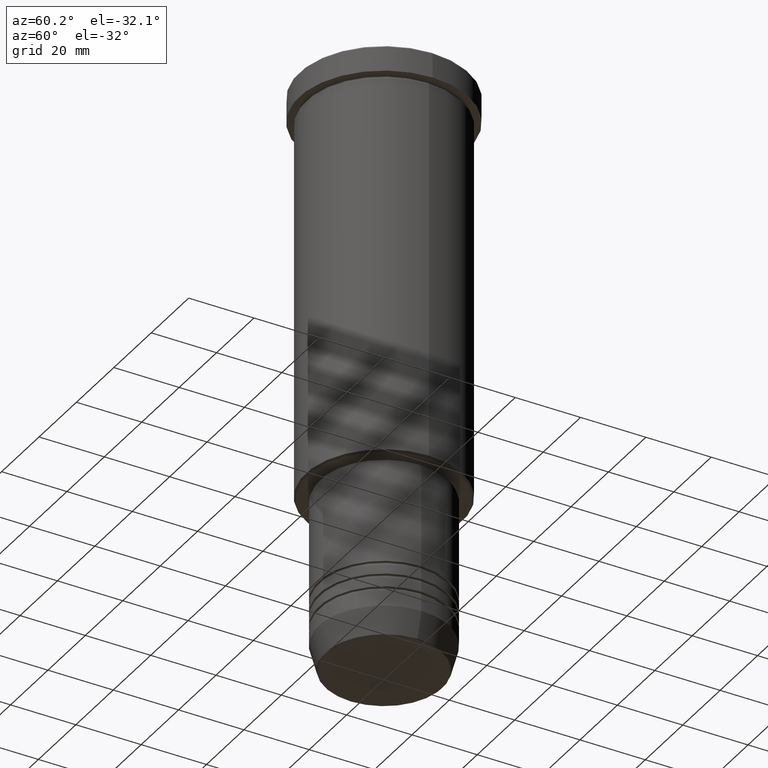
[diagram: clean part render]
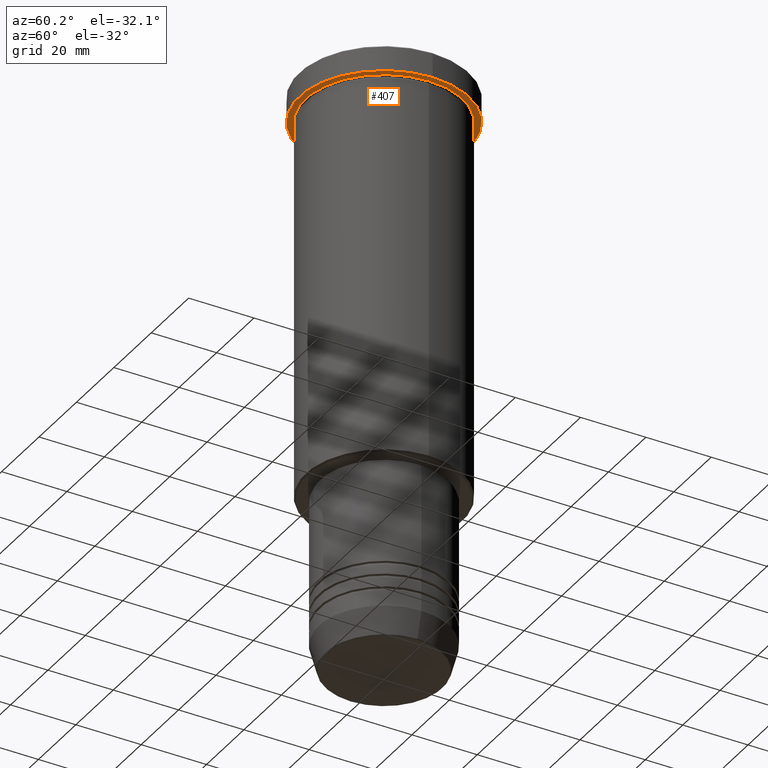
[diagram: same view with one face highlighted and labeled with its STEP entity id]
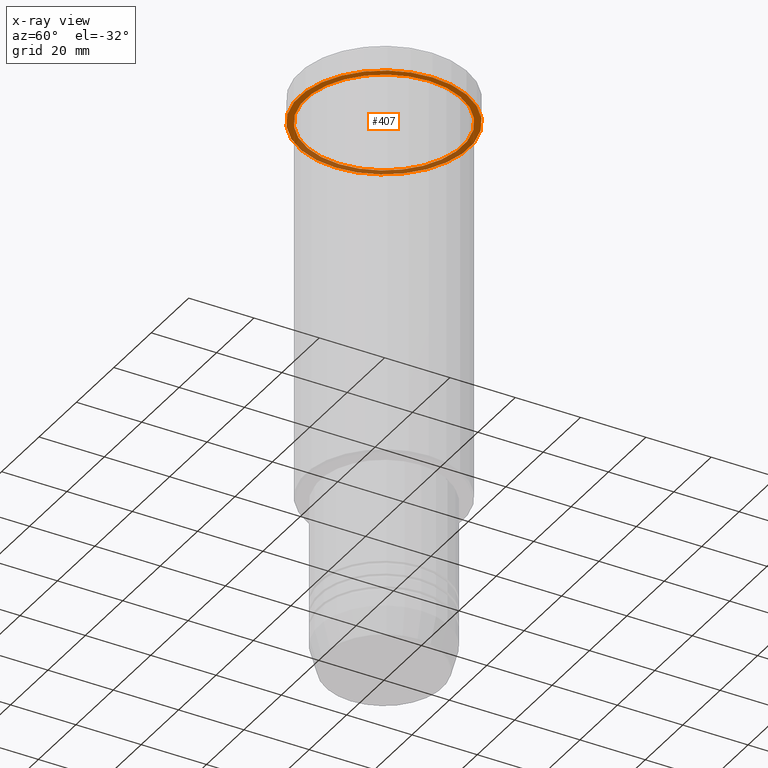
[diagram: x-ray of the same camera — body ghosted, the highlighted face saturated]
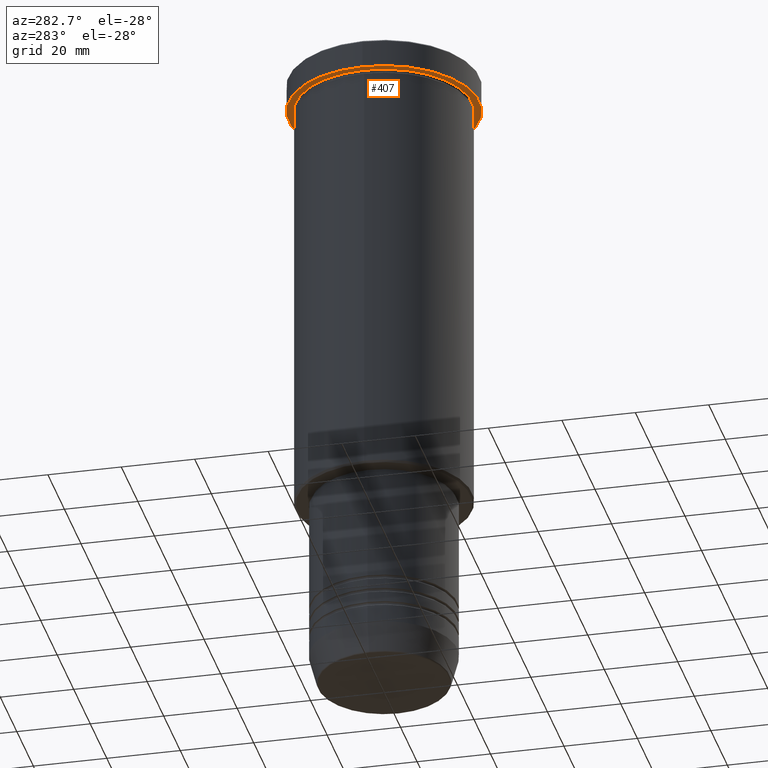
[diagram: same view with one face highlighted and labeled with its STEP entity id]
A machine part, auxiliary view. The second image highlights one B-rep face of the part: STEP entity #407.
The next image is the same camera in x-ray: the body ghosted, the highlighted face saturated — about 38% of this face is hidden behind the body in this view.
A second angle (auxiliary view) of the same face is appended — the face is thin or edge-on in the first view.
In plain terms, the highlighted planar face has unit normal (0, 0, -1).
Its self-contained STEP definition (entity closure, byte-faithful):
#40 = AXIS2_PLACEMENT_3D ( 'NONE', #394, #756, #119 ) ;
#53 = DIRECTION ( 'NONE',  ( -0.000000000000000000, -0.000000000000000000, 1.000000000000000000 ) ) ;
#62 = EDGE_CURVE ( 'NONE', #563, #750, #396, .T. ) ;
#70 = AXIS2_PLACEMENT_3D ( 'NONE', #349, #631, #720 ) ;
#78 = VERTEX_POINT ( 'NONE', #247 ) ;
#119 = DIRECTION ( 'NONE',  ( -1.000000000000000000, 0.000000000000000000, 0.000000000000000000 ) ) ;
#150 = CARTESIAN_POINT ( 'NONE',  ( 0.000000000000000000, 0.000000000000000000, -7.999999999999992895 ) ) ;
#201 = EDGE_CURVE ( 'NONE', #461, #78, #892, .T. ) ;
#208 = DIRECTION ( 'NONE',  ( -1.000000000000000000, 0.000000000000000000, -0.000000000000000000 ) ) ;
#217 = FACE_BOUND ( 'NONE', #1010, .T. ) ;
#247 = CARTESIAN_POINT ( 'NONE',  ( 26.00000000000000000, 0.000000000000000000, -7.999999999999992895 ) ) ;
#248 = DIRECTION ( 'NONE',  ( -0.000000000000000000, -0.000000000000000000, 1.000000000000000000 ) ) ;
#294 = FACE_OUTER_BOUND ( 'NONE', #437, .T. ) ;
#328 = CARTESIAN_POINT ( 'NONE',  ( -24.00000000000000000, 0.000000000000000000, -7.999999999999992895 ) ) ;
#349 = CARTESIAN_POINT ( 'NONE',  ( 0.000000000000000000, 0.000000000000000000, -7.999999999999992895 ) ) ;
#363 = CARTESIAN_POINT ( 'NONE',  ( 24.00000000000000000, 2.939152317953647894E-15, -7.999999999999992895 ) ) ;
#368 = ORIENTED_EDGE ( 'NONE', *, *, #1136, .F. ) ;
#394 = CARTESIAN_POINT ( 'NONE',  ( 0.000000000000000000, 0.000000000000000000, -7.999999999999992895 ) ) ;
#396 = CIRCLE ( 'NONE', #912, 24.00000000000000000 ) ;
#407 = ADVANCED_FACE ( 'NONE', ( #217, #294 ), #580, .T. ) ;
#437 = EDGE_LOOP ( 'NONE', ( #368, #953 ) ) ;
#461 = VERTEX_POINT ( 'NONE', #499 ) ;
#499 = CARTESIAN_POINT ( 'NONE',  ( -26.00000000000000000, 3.184081677783118191E-15, -7.999999999999992895 ) ) ;
#563 = VERTEX_POINT ( 'NONE', #328 ) ;
#580 = PLANE ( 'NONE',  #1165 ) ;
#602 = DIRECTION ( 'NONE',  ( -1.000000000000000000, 0.000000000000000000, 0.000000000000000000 ) ) ;
#608 = CIRCLE ( 'NONE', #990, 26.00000000000000000 ) ;
#613 = DIRECTION ( 'NONE',  ( 1.000000000000000000, 0.000000000000000000, 0.000000000000000000 ) ) ;
#626 = CARTESIAN_POINT ( 'NONE',  ( 0.000000000000000000, 0.000000000000000000, -7.999999999999992895 ) ) ;
#631 = DIRECTION ( 'NONE',  ( -0.000000000000000000, -0.000000000000000000, 1.000000000000000000 ) ) ;
#666 = CARTESIAN_POINT ( 'NONE',  ( 0.000000000000000000, 26.00000000000000000, -7.999999999999992895 ) ) ;
#720 = DIRECTION ( 'NONE',  ( 1.000000000000000000, 0.000000000000000000, 0.000000000000000000 ) ) ;
#722 = CIRCLE ( 'NONE', #40, 24.00000000000000000 ) ;
#750 = VERTEX_POINT ( 'NONE', #363 ) ;
#754 = EDGE_CURVE ( 'NONE', #750, #563, #722, .T. ) ;
#756 = DIRECTION ( 'NONE',  ( -0.000000000000000000, -0.000000000000000000, 1.000000000000000000 ) ) ;
#781 = ORIENTED_EDGE ( 'NONE', *, *, #754, .T. ) ;
#892 = CIRCLE ( 'NONE', #70, 26.00000000000000000 ) ;
#908 = ORIENTED_EDGE ( 'NONE', *, *, #62, .T. ) ;
#912 = AXIS2_PLACEMENT_3D ( 'NONE', #150, #53, #602 ) ;
#953 = ORIENTED_EDGE ( 'NONE', *, *, #201, .F. ) ;
#990 = AXIS2_PLACEMENT_3D ( 'NONE', #626, #248, #613 ) ;
#1010 = EDGE_LOOP ( 'NONE', ( #908, #781 ) ) ;
#1029 = DIRECTION ( 'NONE',  ( 0.000000000000000000, 0.000000000000000000, -1.000000000000000000 ) ) ;
#1136 = EDGE_CURVE ( 'NONE', #78, #461, #608, .T. ) ;
#1165 = AXIS2_PLACEMENT_3D ( 'NONE', #666, #1029, #208 ) ;